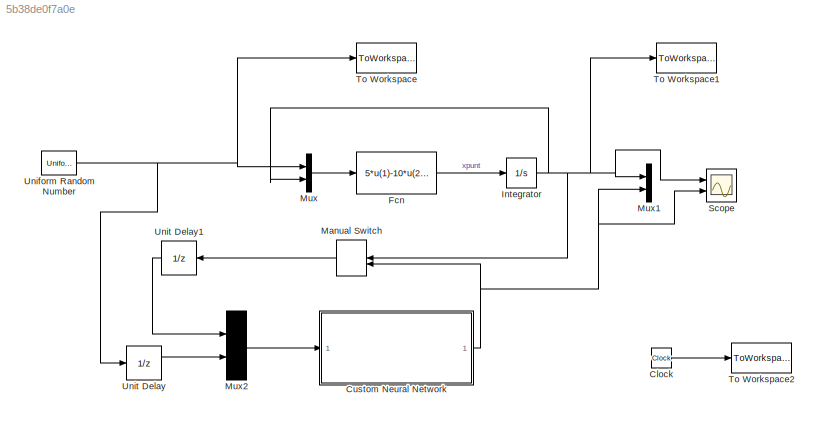
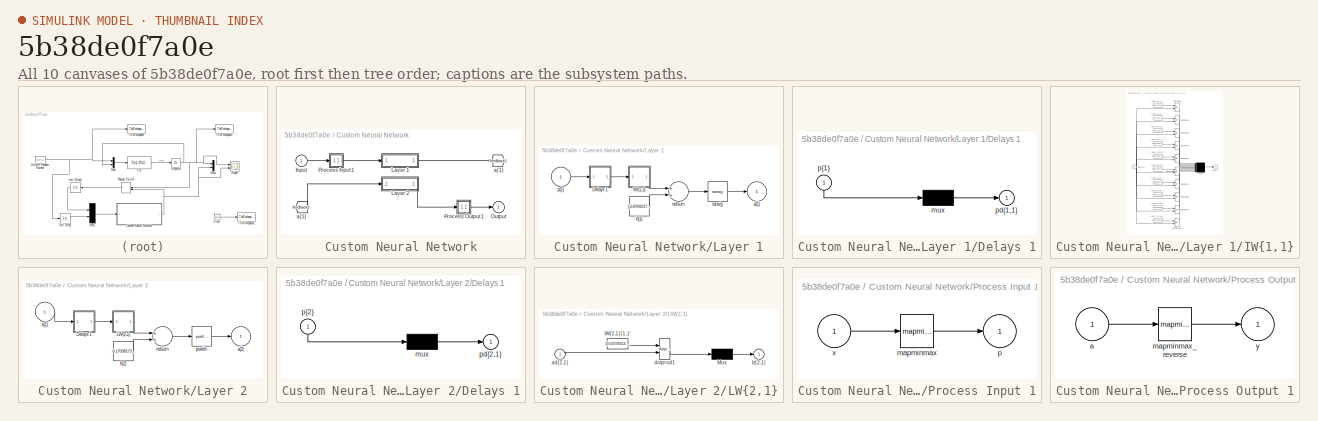
[diagram: thumbnail index - all 10 canvases of the model, root first then tree order]
MODEL slx_5b38de0f7a0e
KIND model
CONFIG AbsTol = auto
CONFIG FixedStep = auto
CONFIG MaxStep = auto
CONFIG MinStep = auto
CONFIG RelTol = 1e-3
CONFIG SampleTimeConstraint = Unconstrained
CONFIG Solver = VariableStepAuto
CONFIG SolverMode = Auto
CONFIG SolverName = VariableStepAuto
CONFIG StartTime = 0.0
CONFIG StopTime = 10.0
BLOCK [Clock] Clock
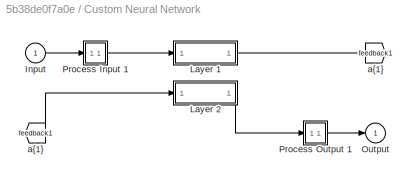
BLOCK [SubSystem] Custom Neural Network
  Ports = [1, 1]
  RequestExecContextInheritance = off
  Variant = off
BLOCK [From] Custom Neural Network/ a{1} 
  GotoTag = feedback1
BLOCK [Inport] Custom Neural Network/Input
  IconDisplay = Port number
  PortDimensions = 2
  SampleTime = 0.01
BLOCK [SubSystem] Custom Neural Network/Layer 1
  Ports = [1, 1]
  RequestExecContextInheritance = off
  Variant = off
BLOCK [SubSystem] Custom Neural Network/Layer 1/Delays 1
  Ports = [1, 1]
  RequestExecContextInheritance = off
  Variant = off
BLOCK [Mux] Custom Neural Network/Layer 1/Delays 1/mux
  Inputs = 1
  Ports = [1, 1]
BLOCK [Outport] Custom Neural Network/Layer 1/Delays 1/pd{1,1}
  IconDisplay = Port number
BLOCK [Inport] Custom Neural Network/Layer 1/Delays 1/p{1}
  IconDisplay = Port number
  PortDimensions = 2
  SampleTime = 0.01
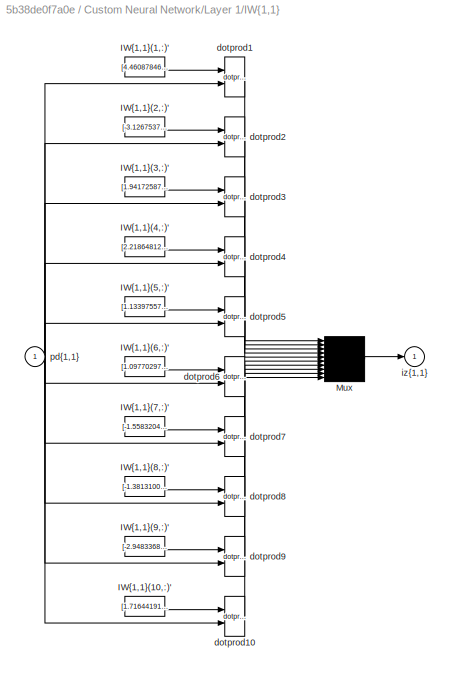
BLOCK [SubSystem] Custom Neural Network/Layer 1/IW{1,1}
  Ports = [1, 1]
  RequestExecContextInheritance = off
  Variant = off
BLOCK [Constant] Custom Neural Network/Layer 1/IW{1,1}/IW{1,1}(1,:)'
  Value = [4.4608784697087156;0.016402541260812864]
BLOCK [Constant] Custom Neural Network/Layer 1/IW{1,1}/IW{1,1}(10,:)'
  Value = [1.7164419130502533;4.7075806036439394]
BLOCK [Constant] Custom Neural Network/Layer 1/IW{1,1}/IW{1,1}(2,:)'
  Value = [-3.126753772119141;-0.0022397772917936796]
BLOCK [Constant] Custom Neural Network/Layer 1/IW{1,1}/IW{1,1}(3,:)'
  Value = [1.9417258771078909;2.2641367356978637]
BLOCK [Constant] Custom Neural Network/Layer 1/IW{1,1}/IW{1,1}(4,:)'
  Value = [2.2186481208281337;-2.9884710049911671]
BLOCK [Constant] Custom Neural Network/Layer 1/IW{1,1}/IW{1,1}(5,:)'
  Value = [1.1339755782677405;-1.860584256662803]
BLOCK [Constant] Custom Neural Network/Layer 1/IW{1,1}/IW{1,1}(6,:)'
  Value = [1.0977029797170661;-0.08803869979082786]
BLOCK [Constant] Custom Neural Network/Layer 1/IW{1,1}/IW{1,1}(7,:)'
  Value = [-1.5583204733924212;-2.7052792367918683]
BLOCK [Constant] Custom Neural Network/Layer 1/IW{1,1}/IW{1,1}(8,:)'
  Value = [-1.3813100555911877;-3.3192406184598164]
BLOCK [Constant] Custom Neural Network/Layer 1/IW{1,1}/IW{1,1}(9,:)'
  Value = [-2.9483368310407672;1.3005128987717667]
BLOCK [Mux] Custom Neural Network/Layer 1/IW{1,1}/Mux
  Inputs = 10
  Ports = [10, 1]
BLOCK [Reference] Custom Neural Network/Layer 1/IW{1,1}/dotprod1  REF=neural/Weight Functions/dotprod
  Ports = [2, 1]
  SourceBlock = neural/Weight Functions/dotprod
  SourceType = DOTPROD
BLOCK [Reference] Custom Neural Network/Layer 1/IW{1,1}/dotprod10  REF=neural/Weight Functions/dotprod
  Ports = [2, 1]
  SourceBlock = neural/Weight Functions/dotprod
  SourceType = DOTPROD
BLOCK [Reference] Custom Neural Network/Layer 1/IW{1,1}/dotprod2  REF=neural/Weight Functions/dotprod
  Ports = [2, 1]
  SourceBlock = neural/Weight Functions/dotprod
  SourceType = DOTPROD
BLOCK [Reference] Custom Neural Network/Layer 1/IW{1,1}/dotprod3  REF=neural/Weight Functions/dotprod
  Ports = [2, 1]
  SourceBlock = neural/Weight Functions/dotprod
  SourceType = DOTPROD
BLOCK [Reference] Custom Neural Network/Layer 1/IW{1,1}/dotprod4  REF=neural/Weight Functions/dotprod
  Ports = [2, 1]
  SourceBlock = neural/Weight Functions/dotprod
  SourceType = DOTPROD
BLOCK [Reference] Custom Neural Network/Layer 1/IW{1,1}/dotprod5  REF=neural/Weight Functions/dotprod
  Ports = [2, 1]
  SourceBlock = neural/Weight Functions/dotprod
  SourceType = DOTPROD
BLOCK [Reference] Custom Neural Network/Layer 1/IW{1,1}/dotprod6  REF=neural/Weight Functions/dotprod
  Ports = [2, 1]
  SourceBlock = neural/Weight Functions/dotprod
  SourceType = DOTPROD
BLOCK [Reference] Custom Neural Network/Layer 1/IW{1,1}/dotprod7  REF=neural/Weight Functions/dotprod
  Ports = [2, 1]
  SourceBlock = neural/Weight Functions/dotprod
  SourceType = DOTPROD
BLOCK [Reference] Custom Neural Network/Layer 1/IW{1,1}/dotprod8  REF=neural/Weight Functions/dotprod
  Ports = [2, 1]
  SourceBlock = neural/Weight Functions/dotprod
  SourceType = DOTPROD
BLOCK [Reference] Custom Neural Network/Layer 1/IW{1,1}/dotprod9  REF=neural/Weight Functions/dotprod
  Ports = [2, 1]
  SourceBlock = neural/Weight Functions/dotprod
  SourceType = DOTPROD
BLOCK [Outport] Custom Neural Network/Layer 1/IW{1,1}/iz{1,1}
  IconDisplay = Port number
BLOCK [Inport] Custom Neural Network/Layer 1/IW{1,1}/pd{1,1}
  IconDisplay = Port number
  PortDimensions = 2
  SampleTime = 0.01
BLOCK [Outport] Custom Neural Network/Layer 1/a{1}
  IconDisplay = Port number
  InitialOutput = [0;0;0;0;0;0;0;0;0;0]
BLOCK [Constant] Custom Neural Network/Layer 1/b{1}
  Value = [-3.8769217990637652;1.5949334422854748;-1.1706189916454626;-0.36766657631726635;0.01967453683433917;0.15409249624006655;-0.4416769596014557;-2.721103728481816;-2.1457815990473992;3.8041641159268087]
BLOCK [Sum] Custom Neural Network/Layer 1/netsum
  Inputs = 2
  Ports = [2, 1]
BLOCK [Inport] Custom Neural Network/Layer 1/p{1}
  IconDisplay = Port number
  PortDimensions = 2
  SampleTime = 0.01
BLOCK [Reference] Custom Neural Network/Layer 1/tansig  REF=neural/Transfer Functions/tansig
  Ports = [1, 1]
  SourceBlock = neural/Transfer Functions/tansig
  SourceType = TANSIG
BLOCK [SubSystem] Custom Neural Network/Layer 2
  Ports = [1, 1]
  RequestExecContextInheritance = off
  Variant = off
BLOCK [SubSystem] Custom Neural Network/Layer 2/Delays 1
  Ports = [1, 1]
  RequestExecContextInheritance = off
  Variant = off
BLOCK [Mux] Custom Neural Network/Layer 2/Delays 1/mux
  Inputs = 1
  Ports = [1, 1]
BLOCK [Outport] Custom Neural Network/Layer 2/Delays 1/pd{2,1}
  IconDisplay = Port number
BLOCK [Inport] Custom Neural Network/Layer 2/Delays 1/p{2}
  IconDisplay = Port number
  PortDimensions = 10
  SampleTime = 0.01
BLOCK [SubSystem] Custom Neural Network/Layer 2/LW{2,1}
  Ports = [1, 1]
  RequestExecContextInheritance = off
  Variant = off
BLOCK [Constant] Custom Neural Network/Layer 2/LW{2,1}/IW{2,1}(1,:)'
  Value = [0.033783142811846655;-0.043834435194646817;0.023397441094234969;0.056448008188041875;-0.17808681901904924;0.84955052741182369;-0.040400177989575868;-0.15507192868054259;-0.19837556500313241;-0.065759615045375891]
BLOCK [Mux] Custom Neural Network/Layer 2/LW{2,1}/Mux
  Inputs = 1
  Ports = [1, 1]
BLOCK [Inport] Custom Neural Network/Layer 2/LW{2,1}/ad{2,1}
  IconDisplay = Port number
  PortDimensions = 10
  SampleTime = 0.01
BLOCK [Reference] Custom Neural Network/Layer 2/LW{2,1}/dotprod1  REF=neural/Weight Functions/dotprod
  Ports = [2, 1]
  SourceBlock = neural/Weight Functions/dotprod
  SourceType = DOTPROD
BLOCK [Outport] Custom Neural Network/Layer 2/LW{2,1}/lz{2,1}
  IconDisplay = Port number
BLOCK [Inport] Custom Neural Network/Layer 2/a{1} 
  IconDisplay = Port number
  PortDimensions = 10
  SampleTime = 0.01
BLOCK [Outport] Custom Neural Network/Layer 2/a{2}
  IconDisplay = Port number
  InitialOutput = 0
BLOCK [Constant] Custom Neural Network/Layer 2/b{2}
  Value = -0.17038173655119429
BLOCK [Sum] Custom Neural Network/Layer 2/netsum
  Inputs = 2
  Ports = [2, 1]
BLOCK [Reference] Custom Neural Network/Layer 2/purelin  REF=neural/Transfer Functions/purelin
  Ports = [1, 1]
  SourceBlock = neural/Transfer Functions/purelin
  SourceType = PURELIN
BLOCK [Outport] Custom Neural Network/Output
  IconDisplay = Port number
  InitialOutput = 0
BLOCK [SubSystem] Custom Neural Network/Process Input 1
  Ports = [1, 1]
  RequestExecContextInheritance = off
  Variant = off
BLOCK [Reference] Custom Neural Network/Process Input 1/mapminmax  REF=neural/Processing Functions/mapminmax
  Ports = [1, 1]
  SourceBlock = neural/Processing Functions/mapminmax
  SourceType = MAPMINMAX Preprocess
BLOCK [Outport] Custom Neural Network/Process Input 1/p
  IconDisplay = Port number
  PortDimensions = 2
  SampleTime = 0.01
BLOCK [Inport] Custom Neural Network/Process Input 1/x
  IconDisplay = Port number
  PortDimensions = 2
  SampleTime = 0.01
BLOCK [SubSystem] Custom Neural Network/Process Output 1
  Ports = [1, 1]
  RequestExecContextInheritance = off
  Variant = off
BLOCK [Inport] Custom Neural Network/Process Output 1/a
  IconDisplay = Port number
  PortDimensions = 1
  SampleTime = 0.01
BLOCK [Reference] Custom Neural Network/Process Output 1/mapminmax_reverse  REF=neural/Processing Functions/mapminmax_reverse
  Ports = [1, 1]
  SourceBlock = neural/Processing Functions/mapminmax_reverse
  SourceType = MAPMINMAX Reverse Process
BLOCK [Outport] Custom Neural Network/Process Output 1/y
  IconDisplay = Port number
  PortDimensions = 1
  SampleTime = 0.01
BLOCK [Goto] Custom Neural Network/a{1}
  GotoTag = feedback1
BLOCK [Fcn] Fcn
  Expr = 5*u(1)-10*u(2)^5
BLOCK [Integrator] Integrator
  Ports = [1, 1]
BLOCK [ManualSwitch] Manual Switch
BLOCK [Mux] Mux
  DisplayOption = bar
  Inputs = 2
  Ports = [2, 1]
BLOCK [Mux] Mux1
  DisplayOption = bar
  Inputs = 2
  Ports = [2, 1]
BLOCK [Mux] Mux2
  DisplayOption = bar
  Inputs = 2
  Ports = [2, 1]
BLOCK [Scope] Scope
  NumInputPorts = 2
  Ports = [2]
  ScopeSpecificationString = Simulink.scopes.TimeScopeBlockCfg('CurrentConfiguration', extmgr.ConfigurationSet(extmgr.Configuration('Core','General UI',true),extmgr.Configuration('Core','Source UI',true),extmgr.Configuration('Sources','WiredSimulink',true),extmgr.Configuration('Visuals','Time Domain',true,'SerializedDisplays',{struct('MinYLimReal','0.57171','MaxYLimReal','1.23005','YLabelReal','','MinYLimMag','0.57171','MaxYL...<+1398ch>
BLOCK [ToWorkspace] To Workspace
  FixptAsFi = on
  MaxDataPoints = inf
  Ports = [1]
  SampleTime = 0.01
  Save2DSignal = 3-D array (concatenate along third dimension)
  VariableName = Entrada
BLOCK [ToWorkspace] To Workspace1
  FixptAsFi = on
  MaxDataPoints = inf
  Ports = [1]
  SampleTime = 0.01
  Save2DSignal = 3-D array (concatenate along third dimension)
  VariableName = Salida
BLOCK [ToWorkspace] To Workspace2
  FixptAsFi = on
  MaxDataPoints = inf
  Ports = [1]
  SampleTime = 0.01
  Save2DSignal = 3-D array (concatenate along third dimension)
  VariableName = Tiempo
BLOCK [UniformRandomNumber] Uniform Random Number
  Maximum = 5
  Minimum = 0
  SampleTime = 0.5
BLOCK [UnitDelay] Unit Delay
  InputProcessing = Elements as channels (sample based)
  SampleTime = 0.01
BLOCK [UnitDelay] Unit Delay1
  InputProcessing = Elements as channels (sample based)
  SampleTime = 0.01
LINE Clock:1 -> To Workspace2:1
LINE Custom Neural Network/ a{1} :1 -> Custom Neural Network/Layer 2:1
LINE Custom Neural Network/Input:1 -> Custom Neural Network/Process Input 1:1
LINE Custom Neural Network/Layer 1/Delays 1/mux:1 -> Custom Neural Network/Layer 1/Delays 1/pd{1,1}:1
LINE Custom Neural Network/Layer 1/Delays 1/p{1}:1 -> Custom Neural Network/Layer 1/Delays 1/mux:1
LINE Custom Neural Network/Layer 1/Delays 1:1 -> Custom Neural Network/Layer 1/IW{1,1}:1
LINE Custom Neural Network/Layer 1/IW{1,1}/IW{1,1}(1,:)':1 -> Custom Neural Network/Layer 1/IW{1,1}/dotprod1:1
LINE Custom Neural Network/Layer 1/IW{1,1}/IW{1,1}(10,:)':1 -> Custom Neural Network/Layer 1/IW{1,1}/dotprod10:1
LINE Custom Neural Network/Layer 1/IW{1,1}/IW{1,1}(2,:)':1 -> Custom Neural Network/Layer 1/IW{1,1}/dotprod2:1
LINE Custom Neural Network/Layer 1/IW{1,1}/IW{1,1}(3,:)':1 -> Custom Neural Network/Layer 1/IW{1,1}/dotprod3:1
LINE Custom Neural Network/Layer 1/IW{1,1}/IW{1,1}(4,:)':1 -> Custom Neural Network/Layer 1/IW{1,1}/dotprod4:1
LINE Custom Neural Network/Layer 1/IW{1,1}/IW{1,1}(5,:)':1 -> Custom Neural Network/Layer 1/IW{1,1}/dotprod5:1
LINE Custom Neural Network/Layer 1/IW{1,1}/IW{1,1}(6,:)':1 -> Custom Neural Network/Layer 1/IW{1,1}/dotprod6:1
LINE Custom Neural Network/Layer 1/IW{1,1}/IW{1,1}(7,:)':1 -> Custom Neural Network/Layer 1/IW{1,1}/dotprod7:1
LINE Custom Neural Network/Layer 1/IW{1,1}/IW{1,1}(8,:)':1 -> Custom Neural Network/Layer 1/IW{1,1}/dotprod8:1
LINE Custom Neural Network/Layer 1/IW{1,1}/IW{1,1}(9,:)':1 -> Custom Neural Network/Layer 1/IW{1,1}/dotprod9:1
LINE Custom Neural Network/Layer 1/IW{1,1}/Mux:1 -> Custom Neural Network/Layer 1/IW{1,1}/iz{1,1}:1
LINE Custom Neural Network/Layer 1/IW{1,1}/dotprod10:1 -> Custom Neural Network/Layer 1/IW{1,1}/Mux:10
LINE Custom Neural Network/Layer 1/IW{1,1}/dotprod1:1 -> Custom Neural Network/Layer 1/IW{1,1}/Mux:1
LINE Custom Neural Network/Layer 1/IW{1,1}/dotprod2:1 -> Custom Neural Network/Layer 1/IW{1,1}/Mux:2
LINE Custom Neural Network/Layer 1/IW{1,1}/dotprod3:1 -> Custom Neural Network/Layer 1/IW{1,1}/Mux:3
LINE Custom Neural Network/Layer 1/IW{1,1}/dotprod4:1 -> Custom Neural Network/Layer 1/IW{1,1}/Mux:4
LINE Custom Neural Network/Layer 1/IW{1,1}/dotprod5:1 -> Custom Neural Network/Layer 1/IW{1,1}/Mux:5
LINE Custom Neural Network/Layer 1/IW{1,1}/dotprod6:1 -> Custom Neural Network/Layer 1/IW{1,1}/Mux:6
LINE Custom Neural Network/Layer 1/IW{1,1}/dotprod7:1 -> Custom Neural Network/Layer 1/IW{1,1}/Mux:7
LINE Custom Neural Network/Layer 1/IW{1,1}/dotprod8:1 -> Custom Neural Network/Layer 1/IW{1,1}/Mux:8
LINE Custom Neural Network/Layer 1/IW{1,1}/dotprod9:1 -> Custom Neural Network/Layer 1/IW{1,1}/Mux:9
NET Custom Neural Network/Layer 1/IW{1,1}/pd{1,1}:1 -> Custom Neural Network/Layer 1/IW{1,1}/dotprod10:2, Custom Neural Network/Layer 1/IW{1,1}/dotprod1:2, Custom Neural Network/Layer 1/IW{1,1}/dotprod2:2, Custom Neural Network/Layer 1/IW{1,1}/dotprod3:2, Custom Neural Network/Layer 1/IW{1,1}/dotprod4:2, Custom Neural Network/Layer 1/IW{1,1}/dotprod5:2, Custom Neural Network/Layer 1/IW{1,1}/dotprod6:2, Custom Neural Network/Layer 1/IW{1,1}/dotprod7:2, Custom Neural Network/Layer 1/IW{1,1}/dotprod8:2, Custom Neural Network/Layer 1/IW{1,1}/dotprod9:2
LINE Custom Neural Network/Layer 1/IW{1,1}:1 -> Custom Neural Network/Layer 1/netsum:1
LINE Custom Neural Network/Layer 1/b{1}:1 -> Custom Neural Network/Layer 1/netsum:2
LINE Custom Neural Network/Layer 1/netsum:1 -> Custom Neural Network/Layer 1/tansig:1
LINE Custom Neural Network/Layer 1/p{1}:1 -> Custom Neural Network/Layer 1/Delays 1:1
LINE Custom Neural Network/Layer 1/tansig:1 -> Custom Neural Network/Layer 1/a{1}:1
LINE Custom Neural Network/Layer 1:1 -> Custom Neural Network/a{1}:1
LINE Custom Neural Network/Layer 2/Delays 1/mux:1 -> Custom Neural Network/Layer 2/Delays 1/pd{2,1}:1
LINE Custom Neural Network/Layer 2/Delays 1/p{2}:1 -> Custom Neural Network/Layer 2/Delays 1/mux:1
LINE Custom Neural Network/Layer 2/Delays 1:1 -> Custom Neural Network/Layer 2/LW{2,1}:1
LINE Custom Neural Network/Layer 2/LW{2,1}/IW{2,1}(1,:)':1 -> Custom Neural Network/Layer 2/LW{2,1}/dotprod1:1
LINE Custom Neural Network/Layer 2/LW{2,1}/Mux:1 -> Custom Neural Network/Layer 2/LW{2,1}/lz{2,1}:1
LINE Custom Neural Network/Layer 2/LW{2,1}/ad{2,1}:1 -> Custom Neural Network/Layer 2/LW{2,1}/dotprod1:2
LINE Custom Neural Network/Layer 2/LW{2,1}/dotprod1:1 -> Custom Neural Network/Layer 2/LW{2,1}/Mux:1
LINE Custom Neural Network/Layer 2/LW{2,1}:1 -> Custom Neural Network/Layer 2/netsum:1
LINE Custom Neural Network/Layer 2/a{1} :1 -> Custom Neural Network/Layer 2/Delays 1:1
LINE Custom Neural Network/Layer 2/b{2}:1 -> Custom Neural Network/Layer 2/netsum:2
LINE Custom Neural Network/Layer 2/netsum:1 -> Custom Neural Network/Layer 2/purelin:1
LINE Custom Neural Network/Layer 2/purelin:1 -> Custom Neural Network/Layer 2/a{2}:1
LINE Custom Neural Network/Layer 2:1 -> Custom Neural Network/Process Output 1:1
LINE Custom Neural Network/Process Input 1/mapminmax:1 -> Custom Neural Network/Process Input 1/p:1
LINE Custom Neural Network/Process Input 1/x:1 -> Custom Neural Network/Process Input 1/mapminmax:1
LINE Custom Neural Network/Process Input 1:1 -> Custom Neural Network/Layer 1:1
LINE Custom Neural Network/Process Output 1/a:1 -> Custom Neural Network/Process Output 1/mapminmax_reverse:1
LINE Custom Neural Network/Process Output 1/mapminmax_reverse:1 -> Custom Neural Network/Process Output 1/y:1
LINE Custom Neural Network/Process Output 1:1 -> Custom Neural Network/Output:1
NET Custom Neural Network:1 -> Manual Switch:2, Mux1:2, Scope:2
LINE Fcn:1 -> Integrator:1
NET Integrator:1 -> Manual Switch:1, Mux1:1, Mux:2, Scope:1, To Workspace1:1
LINE Manual Switch:1 -> Unit Delay1:1
LINE Mux2:1 -> Custom Neural Network:1
LINE Mux:1 -> Fcn:1
NET Uniform Random Number:1 -> Mux:1, To Workspace:1, Unit Delay:1
LINE Unit Delay1:1 -> Mux2:1
LINE Unit Delay:1 -> Mux2:2
note: NET lines group one-source signal fan-out (src -> all destinations, sorted); 1:1 wires keep LINE
